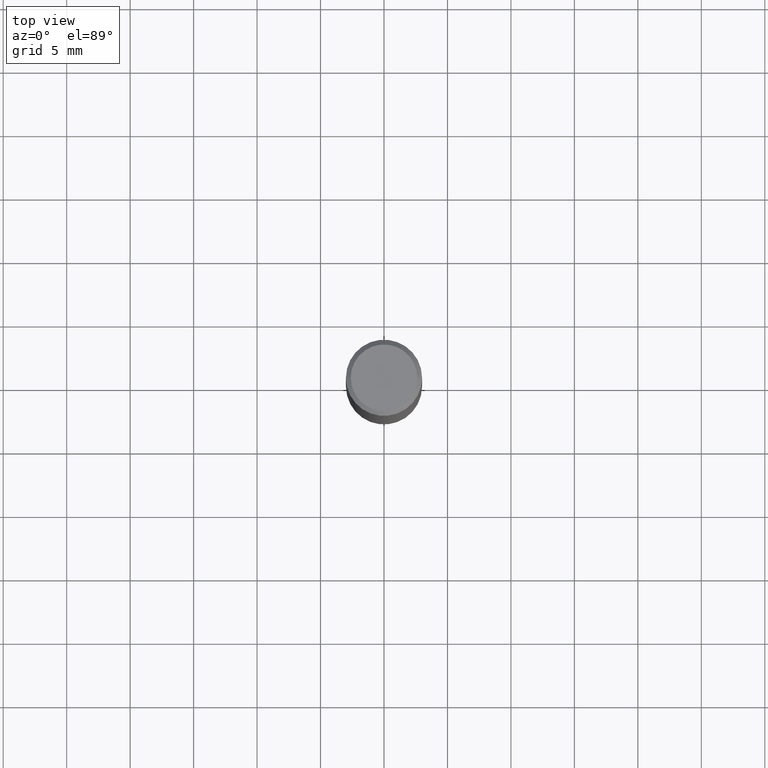
[diagram: clean part render]
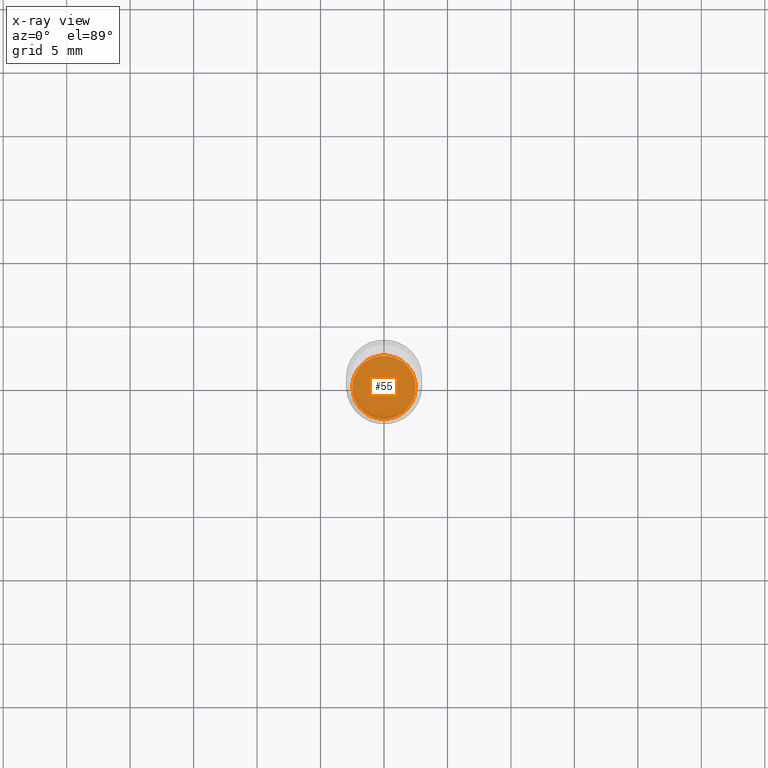
[diagram: x-ray — body ghosted, one internal face saturated and labeled with its STEP entity id]
A machine part, top view, then the same camera in x-ray: the body is ghosted and one INTERNAL B-rep face — a face not visible from any outside direction — is saturated and labeled: STEP entity #55.
In plain terms, the highlighted planar face has unit normal (0, -0, -1).
Its self-contained STEP definition (entity closure, byte-faithful):
#6 = CARTESIAN_POINT ( 'NONE',  ( 4.236285612954512392E-29, -6.048293123277981078E-15, -1.732299999999999951 ) ) ;
#21 = AXIS2_PLACEMENT_3D ( 'NONE', #6, #402, #150 ) ;
#54 = DIRECTION ( 'NONE',  ( -2.445468806185136597E-29, 3.491481338843145583E-15, 1.000000000000000000 ) ) ;
#55 = ADVANCED_FACE ( 'NONE', ( #463 ), #94, .F. ) ;
#62 = CIRCLE ( 'NONE', #251, 0.09845000000000000973 ) ;
#94 = PLANE ( 'NONE',  #283 ) ;
#126 = ORIENTED_EDGE ( 'NONE', *, *, #454, .T. ) ;
#133 = CARTESIAN_POINT ( 'NONE',  ( 0.09845000000000000973, -6.735765798896194427E-15, -1.732299999999999951 ) ) ;
#150 = DIRECTION ( 'NONE',  ( 1.000000000000000000, -6.982962677686265133E-15, 0.000000000000000000 ) ) ;
#154 = CARTESIAN_POINT ( 'NONE',  ( -0.09845000000000000973, -6.242233874532123993E-15, -1.732299999999999951 ) ) ;
#173 = DIRECTION ( 'NONE',  ( 2.438088387897960049E-29, -3.491481338843145188E-15, -1.000000000000000000 ) ) ;
#182 = EDGE_CURVE ( 'NONE', #197, #307, #62, .T. ) ;
#197 = VERTEX_POINT ( 'NONE', #154 ) ;
#198 = DIRECTION ( 'NONE',  ( 1.000000000000000000, -6.982962677686265133E-15, 0.000000000000000000 ) ) ;
#202 = EDGE_LOOP ( 'NONE', ( #126, #274 ) ) ;
#228 = CARTESIAN_POINT ( 'NONE',  ( 4.236285612954512392E-29, -6.048293123277981078E-15, -1.732299999999999951 ) ) ;
#241 = DIRECTION ( 'NONE',  ( -1.000000000000000000, 6.982962677686265922E-15, -4.876176775795935793E-29 ) ) ;
#251 = AXIS2_PLACEMENT_3D ( 'NONE', #228, #54, #198 ) ;
#274 = ORIENTED_EDGE ( 'NONE', *, *, #182, .T. ) ;
#283 = AXIS2_PLACEMENT_3D ( 'NONE', #380, #173, #241 ) ;
#307 = VERTEX_POINT ( 'NONE', #133 ) ;
#380 = CARTESIAN_POINT ( 'NONE',  ( 6.874726756182552572E-16, 0.09844999999999397289, -1.732300000000000173 ) ) ;
#402 = DIRECTION ( 'NONE',  ( -2.445468806185136597E-29, 3.491481338843145583E-15, 1.000000000000000000 ) ) ;
#454 = EDGE_CURVE ( 'NONE', #307, #197, #466, .T. ) ;
#463 = FACE_OUTER_BOUND ( 'NONE', #202, .T. ) ;
#466 = CIRCLE ( 'NONE', #21, 0.09845000000000000973 ) ;